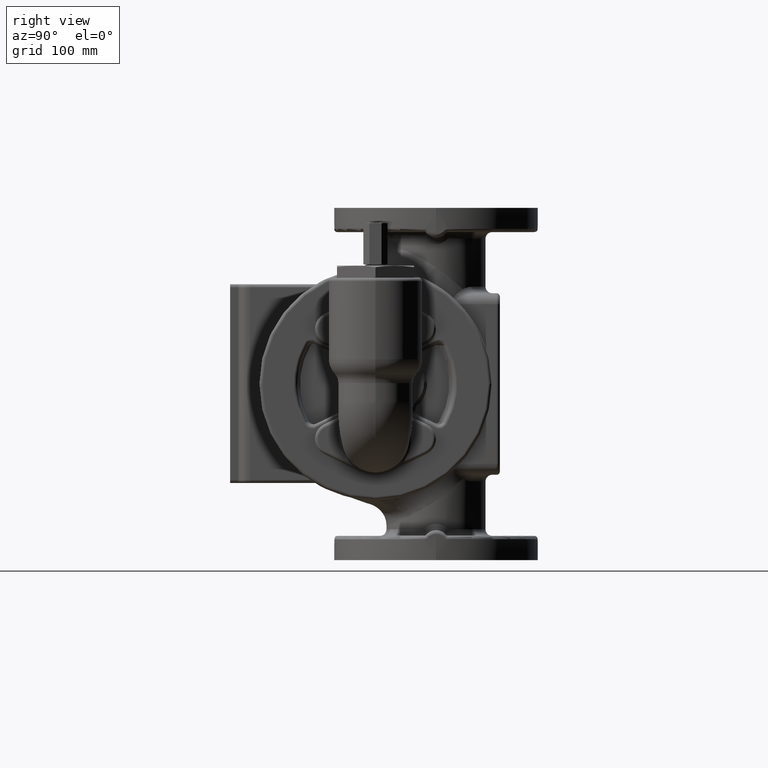
[diagram: clean part render]
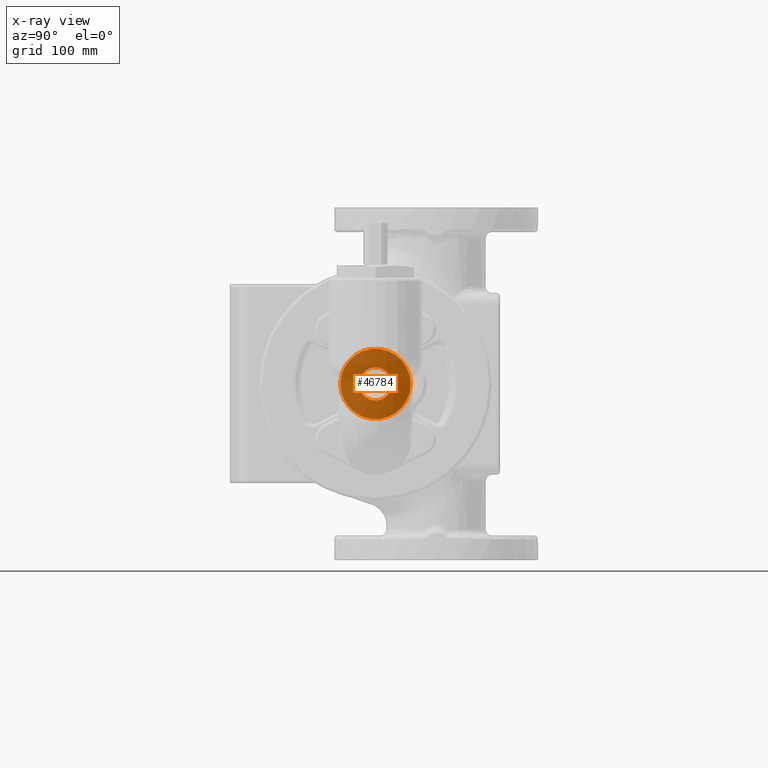
[diagram: x-ray — body ghosted, one internal face saturated and labeled with its STEP entity id]
A machine part, right view, then the same camera in x-ray: the body is ghosted and one INTERNAL B-rep face — a face not visible from any outside direction — is saturated and labeled: STEP entity #46784.
In plain terms, the highlighted planar face has unit normal (1, 0, 0).
Its self-contained STEP definition (entity closure, byte-faithful):
#46578=CARTESIAN_POINT('',(3.E0,0.E0,0.E0));
#46579=DIRECTION('',(-1.E0,0.E0,0.E0));
#46580=DIRECTION('',(0.E0,-1.E0,0.E0));
#46581=AXIS2_PLACEMENT_3D('',#46578,#46579,#46580);
#46583=CARTESIAN_POINT('',(3.E0,0.E0,0.E0));
#46584=DIRECTION('',(-1.E0,0.E0,0.E0));
#46585=DIRECTION('',(0.E0,1.E0,0.E0));
#46586=AXIS2_PLACEMENT_3D('',#46583,#46584,#46585);
#46588=CARTESIAN_POINT('',(3.E0,0.E0,0.E0));
#46589=DIRECTION('',(1.E0,0.E0,0.E0));
#46590=DIRECTION('',(0.E0,1.E0,0.E0));
#46591=AXIS2_PLACEMENT_3D('',#46588,#46589,#46590);
#46593=CARTESIAN_POINT('',(3.E0,0.E0,0.E0));
#46594=DIRECTION('',(1.E0,0.E0,0.E0));
#46595=DIRECTION('',(0.E0,0.E0,1.E0));
#46596=AXIS2_PLACEMENT_3D('',#46593,#46594,#46595);
#46695=CARTESIAN_POINT('',(3.E0,-3.2E1,0.E0));
#46696=CARTESIAN_POINT('',(3.E0,3.2E1,0.E0));
#46697=VERTEX_POINT('',#46695);
#46698=VERTEX_POINT('',#46696);
#46699=CARTESIAN_POINT('',(3.E0,1.5E1,0.E0));
#46700=CARTESIAN_POINT('',(3.E0,0.E0,1.5E1));
#46701=VERTEX_POINT('',#46699);
#46702=VERTEX_POINT('',#46700);
#46769=CARTESIAN_POINT('',(3.E0,0.E0,0.E0));
#46770=DIRECTION('',(1.E0,0.E0,0.E0));
#46771=DIRECTION('',(0.E0,-1.E0,0.E0));
#46772=AXIS2_PLACEMENT_3D('',#46769,#46770,#46771);
#46773=PLANE('',#46772);
#46774=ORIENTED_EDGE('',*,*,#46749,.F.);
#46775=ORIENTED_EDGE('',*,*,#46763,.F.);
#46776=EDGE_LOOP('',(#46774,#46775));
#46777=FACE_OUTER_BOUND('',#46776,.F.);
#46779=ORIENTED_EDGE('',*,*,#46778,.F.);
#46781=ORIENTED_EDGE('',*,*,#46780,.F.);
#46782=EDGE_LOOP('',(#46779,#46781));
#46783=FACE_BOUND('',#46782,.F.);
#46784=ADVANCED_FACE('',(#46777,#46783),#46773,.F.);
#46582=CIRCLE('',#46581,3.2E1);
#46587=CIRCLE('',#46586,3.2E1);
#46592=CIRCLE('',#46591,1.5E1);
#46597=CIRCLE('',#46596,1.5E1);
#46749=EDGE_CURVE('',#46697,#46698,#46582,.T.);
#46763=EDGE_CURVE('',#46698,#46697,#46587,.T.);
#46778=EDGE_CURVE('',#46701,#46702,#46592,.T.);
#46780=EDGE_CURVE('',#46702,#46701,#46597,.T.);